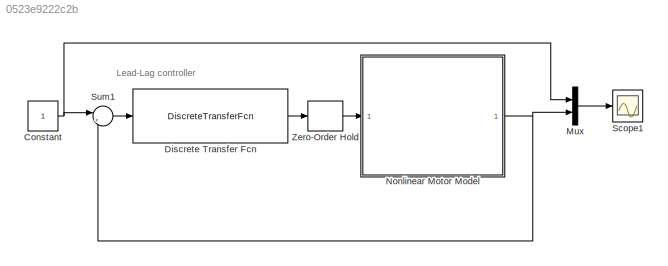
MODEL slx_0523e9222c2b
KIND model
CONFIG AbsTol = 1e-6
CONFIG EnableMultiTasking = on
CONFIG FixedStep = .0001
CONFIG MaxStep = auto
CONFIG MinStep = auto
CONFIG RelTol = 1e-6
CONFIG SampleTimeConstraint = Unconstrained
CONFIG Solver = ode45
CONFIG SolverName = ode45
CONFIG StartTime = 0.0
CONFIG StopTime = 0.5
BLOCK [Constant] Constant
BLOCK [DiscreteTransferFcn] Discrete Transfer Fcn
  Denominator = [1 -1.956 0.956]
  InputPortMap = u0
  Numerator = [1.429 -2.824 1.395]
  Ports = [1, 1]
  SampleTime = 0.001
BLOCK [Mux] Mux
  DisplayOption = bar
  Inputs = 2
  Ports = [2, 1]
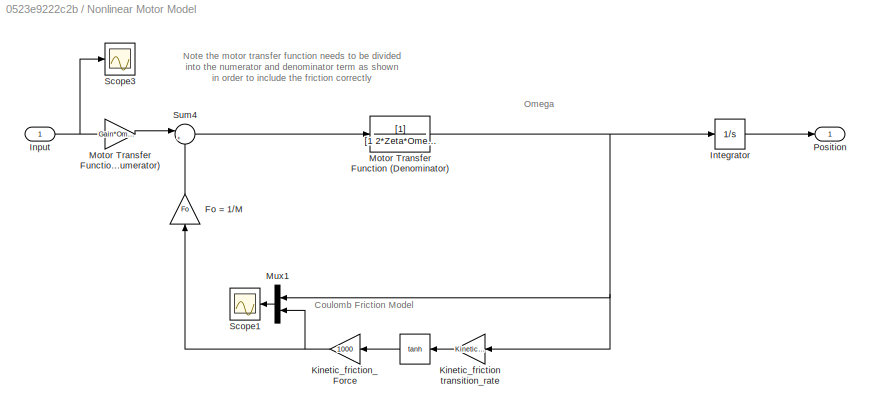
BLOCK [SubSystem] Nonlinear Motor Model
  Ports = [1, 1]
  RequestExecContextInheritance = off
BLOCK [Trigonometry] Nonlinear Motor Model/ 
  Operator = tanh
  Ports = [1, 1]
BLOCK [Gain] Nonlinear Motor Model/Fo = 1//M
  Gain = Fo
BLOCK [Inport] Nonlinear Motor Model/Input
  IconDisplay = Port number
BLOCK [Integrator] Nonlinear Motor Model/Integrator
  Ports = [1, 1]
BLOCK [Gain] Nonlinear Motor Model/Kinetic_friction transition_rate
  Gain = Kinetic_friction_transition_rate
  OutDataTypeStr = Inherit: Inherit via internal rule
  ParamDataTypeStr = Inherit: Inherit via internal rule
  SaturateOnIntegerOverflow = off
BLOCK [Gain] Nonlinear Motor Model/Kinetic_friction_Force
  Gain = 1000
  OutDataTypeStr = Inherit: Inherit via internal rule
  ParamDataTypeStr = Inherit: Inherit via internal rule
  SaturateOnIntegerOverflow = off
BLOCK [TransferFcn] Nonlinear Motor Model/Motor Transfer Function (Denominator)
  Denominator = [1 2*Zeta*Omegan Omegan^2]
BLOCK [Gain] Nonlinear Motor Model/Motor Transfer Function (Numerator)
  Gain = Gain*Omegan^2
BLOCK [Mux] Nonlinear Motor Model/Mux1
  DisplayOption = bar
  Inputs = 2
  Ports = [2, 1]
BLOCK [Outport] Nonlinear Motor Model/Position
  IconDisplay = Port number
BLOCK [Scope] Nonlinear Motor Model/Scope1
  Floating = off
  NumInputPorts = 1
  Ports = [1]
  ScopeSpecificationString = Simulink.scopes.TimeScopeBlockCfg('CurrentConfiguration', extmgr.ConfigurationSet(extmgr.Configuration('Core','General UI',true),extmgr.Configuration('Core','Source UI',true),extmgr.Configuration('Sources','WiredSimulink',true,'DataLogging',true,'DataLoggingSaveFormat','Array','DataLoggingDecimation','1','DataLoggingDecimateData',true),extmgr.Configuration('Visuals','Time Domain',true,'SerializedD...<+1699ch>
BLOCK [Scope] Nonlinear Motor Model/Scope3
  Floating = off
  NumInputPorts = 1
  Ports = [1]
  ScopeSpecificationString = Simulink.scopes.TimeScopeBlockCfg('CurrentConfiguration', extmgr.ConfigurationSet(extmgr.Configuration('Core','General UI',true),extmgr.Configuration('Core','Source UI',true),extmgr.Configuration('Sources','WiredSimulink',true,'DataLogging',true,'DataLoggingVariableName','ScopeData1','DataLoggingSaveFormat','Array','DataLoggingDecimation','1','DataLoggingDecimateData',true),extmgr.Configuration('V...<+1681ch>
BLOCK [Sum] Nonlinear Motor Model/Sum4
  IconShape = round
  Inputs = |+-
  Ports = [2, 1]
BLOCK [Scope] Scope1
  Floating = off
  NumInputPorts = 1
  Ports = [1]
  ScopeSpecificationString = Simulink.scopes.TimeScopeBlockCfg('CurrentConfiguration', extmgr.ConfigurationSet(extmgr.Configuration('Core','General UI',true),extmgr.Configuration('Core','Source UI',true),extmgr.Configuration('Sources','WiredSimulink',true,'DataLogging',true,'DataLoggingVariableName','ScopeData2','DataLoggingSaveFormat','Array','DataLoggingDecimation','1','DataLoggingDecimateData',true),extmgr.Configuration('V...<+1695ch>
BLOCK [Sum] Sum1
  IconShape = round
  Inputs = |+-
  Ports = [2, 1]
BLOCK [ZeroOrderHold] Zero-Order Hold
  SampleTime = 0.001
ANNOTATION (root): Lead-Lag controller
ANNOTATION Nonlinear Motor Model: Coulomb Friction Model
ANNOTATION Nonlinear Motor Model: Note the motor transfer function needs to be divided into the numerator and denominator term as shown in order to include the friction correctly
ANNOTATION Nonlinear Motor Model: Omega
NET Constant:1 -> Mux:1, Sum1:1
LINE Discrete Transfer Fcn:1 -> Zero-Order Hold:1
LINE Mux:1 -> Scope1:1
LINE Nonlinear Motor Model/ :1 -> Nonlinear Motor Model/Kinetic_friction_Force:1
LINE Nonlinear Motor Model/Fo = 1//M:1 -> Nonlinear Motor Model/Sum4:2
NET Nonlinear Motor Model/Input:1 -> Nonlinear Motor Model/Motor Transfer Function (Numerator):1, Nonlinear Motor Model/Scope3:1
LINE Nonlinear Motor Model/Integrator:1 -> Nonlinear Motor Model/Position:1
LINE Nonlinear Motor Model/Kinetic_friction transition_rate:1 -> Nonlinear Motor Model/ :1
NET Nonlinear Motor Model/Kinetic_friction_Force:1 -> Nonlinear Motor Model/Fo = 1//M:1, Nonlinear Motor Model/Mux1:2
NET Nonlinear Motor Model/Motor Transfer Function (Denominator):1 -> Nonlinear Motor Model/Integrator:1, Nonlinear Motor Model/Kinetic_friction transition_rate:1, Nonlinear Motor Model/Mux1:1
LINE Nonlinear Motor Model/Motor Transfer Function (Numerator):1 -> Nonlinear Motor Model/Sum4:1
LINE Nonlinear Motor Model/Mux1:1 -> Nonlinear Motor Model/Scope1:1
LINE Nonlinear Motor Model/Sum4:1 -> Nonlinear Motor Model/Motor Transfer Function (Denominator):1
NET Nonlinear Motor Model:1 -> Mux:2, Sum1:2
LINE Sum1:1 -> Discrete Transfer Fcn:1
LINE Zero-Order Hold:1 -> Nonlinear Motor Model:1
note: NET lines group one-source signal fan-out (src -> all destinations, sorted); 1:1 wires keep LINE
